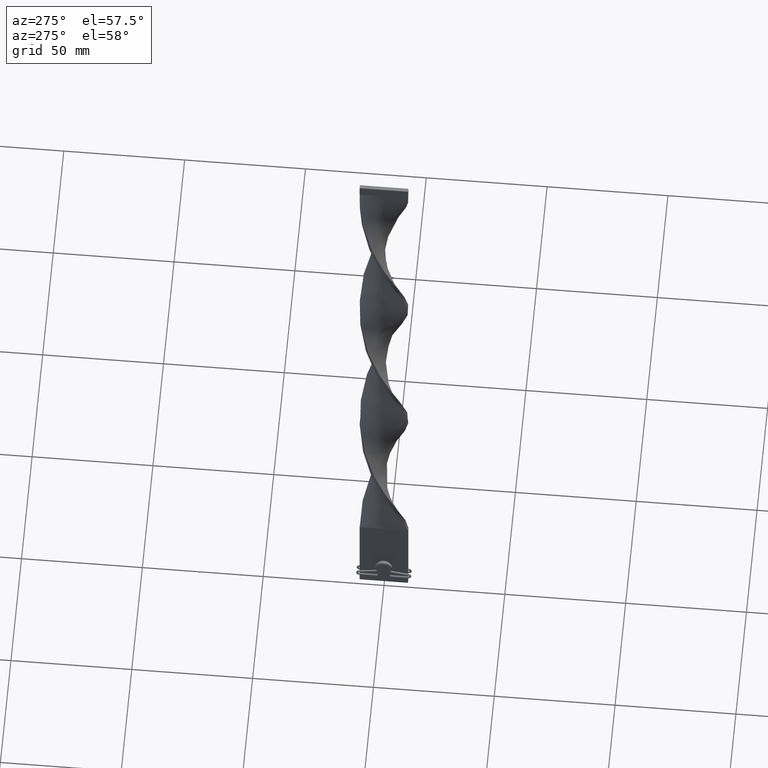
[diagram: clean part render]
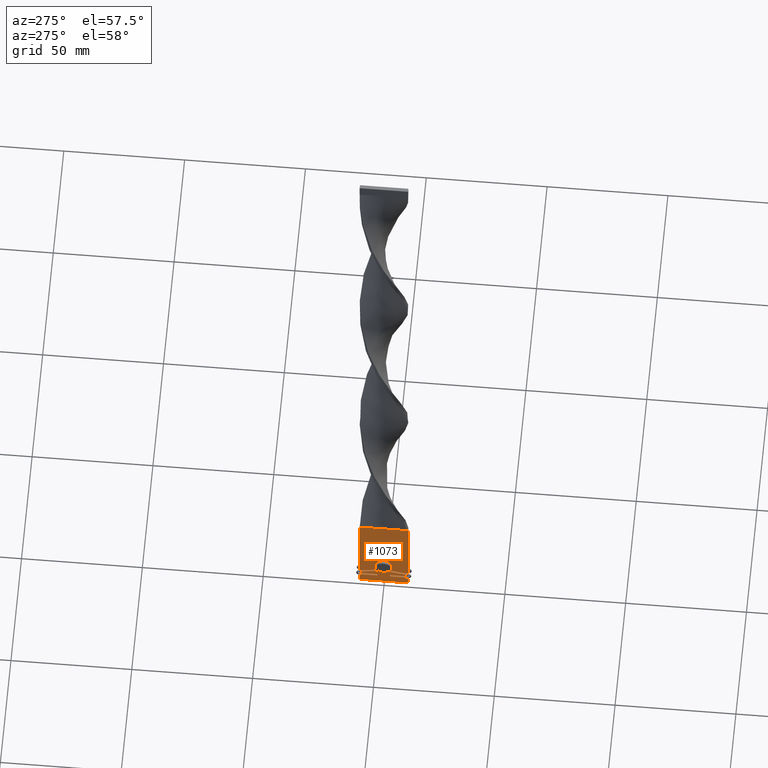
[diagram: same view with one face highlighted and labeled with its STEP entity id]
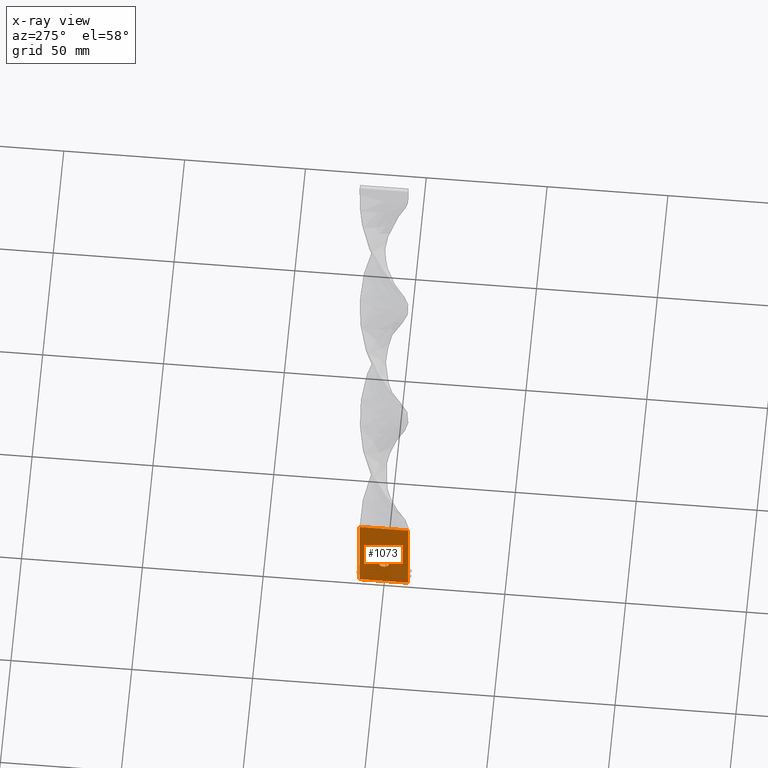
[diagram: x-ray of the same camera — body ghosted, the highlighted face saturated]
A machine part, auxiliary view. The second image highlights one B-rep face of the part: STEP entity #1073.
The next image is the same camera in x-ray: the body ghosted, the highlighted face saturated — about 0% of this face is hidden behind the body in this view.
In plain terms, the highlighted planar face has unit normal (1, 0, -0).
Its self-contained STEP definition (entity closure, byte-faithful):
#45 = AXIS2_PLACEMENT_3D ( 'NONE', #290, #3218, #660 ) ;
#145 = CARTESIAN_POINT ( 'NONE',  ( -0.7499999999999987788, -10.00000000000000000, 0.000000000000000000 ) ) ;
#290 = CARTESIAN_POINT ( 'NONE',  ( -0.7500000000000000000, 8.944667923005414046E-17, 13.00000000000000000 ) ) ;
#300 = ORIENTED_EDGE ( 'NONE', *, *, #2741, .F. ) ;
#309 = DIRECTION ( 'NONE',  ( -0.000000000000000000, -0.000000000000000000, -1.000000000000000000 ) ) ;
#323 = VERTEX_POINT ( 'NONE', #3195 ) ;
#331 = EDGE_CURVE ( 'NONE', #2056, #4666, #1693, .T. ) ;
#511 = AXIS2_PLACEMENT_3D ( 'NONE', #546, #2007, #3484 ) ;
#546 = CARTESIAN_POINT ( 'NONE',  ( -0.7500000000000000000, 8.944667923005414046E-17, 13.00000000000000000 ) ) ;
#660 = DIRECTION ( 'NONE',  ( -1.084202172485504681E-16, 1.000000000000000000, 0.000000000000000000 ) ) ;
#788 = EDGE_LOOP ( 'NONE', ( #2396, #300 ) ) ;
#812 = CIRCLE ( 'NONE', #45, 1.999999999999999556 ) ;
#879 = VECTOR ( 'NONE', #2303, 1000.000000000000000 ) ;
#1073 = ADVANCED_FACE ( 'NONE', ( #3212, #1706 ), #3905, .F. ) ;
#1201 = CARTESIAN_POINT ( 'NONE',  ( -0.7500000000000013323, 10.00000000000000000, 0.000000000000000000 ) ) ;
#1330 = VECTOR ( 'NONE', #4630, 1000.000000000000000 ) ;
#1384 = CARTESIAN_POINT ( 'NONE',  ( -0.7500000000000013323, 10.00000000000000000, 40.00000000000000000 ) ) ;
#1422 = ORIENTED_EDGE ( 'NONE', *, *, #331, .T. ) ;
#1435 = EDGE_CURVE ( 'NONE', #2156, #323, #1596, .T. ) ;
#1499 = CARTESIAN_POINT ( 'NONE',  ( -0.7499999999999997780, -1.999999999999999556, 13.00000000000000000 ) ) ;
#1552 = CARTESIAN_POINT ( 'NONE',  ( -0.7500000000000013323, 10.00000000000000000, 40.00000000000000000 ) ) ;
#1596 = LINE ( 'NONE', #1552, #4728 ) ;
#1688 = VERTEX_POINT ( 'NONE', #3917 ) ;
#1693 = LINE ( 'NONE', #2435, #1330 ) ;
#1706 = FACE_OUTER_BOUND ( 'NONE', #1730, .T. ) ;
#1730 = EDGE_LOOP ( 'NONE', ( #1422, #4561, #1999, #3154 ) ) ;
#1799 = VECTOR ( 'NONE', #309, 1000.000000000000000 ) ;
#1999 = ORIENTED_EDGE ( 'NONE', *, *, #1435, .F. ) ;
#2007 = DIRECTION ( 'NONE',  ( -1.000000000000000000, -1.246832498358330099E-16, 0.000000000000000000 ) ) ;
#2056 = VERTEX_POINT ( 'NONE', #1201 ) ;
#2110 = EDGE_CURVE ( 'NONE', #323, #4666, #3403, .T. ) ;
#2118 = LINE ( 'NONE', #3216, #1799 ) ;
#2128 = DIRECTION ( 'NONE',  ( 1.246832498358330099E-16, -1.000000000000000000, 0.000000000000000000 ) ) ;
#2156 = VERTEX_POINT ( 'NONE', #1384 ) ;
#2303 = DIRECTION ( 'NONE',  ( -0.000000000000000000, -0.000000000000000000, -1.000000000000000000 ) ) ;
#2396 = ORIENTED_EDGE ( 'NONE', *, *, #2986, .F. ) ;
#2435 = CARTESIAN_POINT ( 'NONE',  ( -0.7500000000000013323, 10.00000000000000000, 0.000000000000000000 ) ) ;
#2577 = CIRCLE ( 'NONE', #511, 1.999999999999999556 ) ;
#2678 = CARTESIAN_POINT ( 'NONE',  ( -0.7499999999999987788, -10.00000000000000000, 40.00000000000000000 ) ) ;
#2741 = EDGE_CURVE ( 'NONE', #1688, #4414, #2577, .T. ) ;
#2795 = DIRECTION ( 'NONE',  ( -1.246832498358330099E-16, 1.000000000000000000, 0.000000000000000000 ) ) ;
#2986 = EDGE_CURVE ( 'NONE', #4414, #1688, #812, .T. ) ;
#3154 = ORIENTED_EDGE ( 'NONE', *, *, #4186, .T. ) ;
#3187 = CARTESIAN_POINT ( 'NONE',  ( -0.7500000000000013323, 10.00000000000000000, 40.00000000000000000 ) ) ;
#3195 = CARTESIAN_POINT ( 'NONE',  ( -0.7499999999999987788, -10.00000000000000000, 40.00000000000000000 ) ) ;
#3212 = FACE_BOUND ( 'NONE', #788, .T. ) ;
#3216 = CARTESIAN_POINT ( 'NONE',  ( -0.7500000000000013323, 10.00000000000000000, 40.00000000000000000 ) ) ;
#3218 = DIRECTION ( 'NONE',  ( -1.000000000000000000, -1.246832498358330099E-16, 0.000000000000000000 ) ) ;
#3403 = LINE ( 'NONE', #2678, #879 ) ;
#3424 = AXIS2_PLACEMENT_3D ( 'NONE', #3187, #4651, #2795 ) ;
#3484 = DIRECTION ( 'NONE',  ( -1.084202172485504681E-16, 1.000000000000000000, 0.000000000000000000 ) ) ;
#3905 = PLANE ( 'NONE',  #3424 ) ;
#3917 = CARTESIAN_POINT ( 'NONE',  ( -0.7500000000000002220, 1.999999999999999556, 13.00000000000000000 ) ) ;
#4186 = EDGE_CURVE ( 'NONE', #2156, #2056, #2118, .T. ) ;
#4414 = VERTEX_POINT ( 'NONE', #1499 ) ;
#4561 = ORIENTED_EDGE ( 'NONE', *, *, #2110, .F. ) ;
#4630 = DIRECTION ( 'NONE',  ( 1.246832498358330099E-16, -1.000000000000000000, 0.000000000000000000 ) ) ;
#4651 = DIRECTION ( 'NONE',  ( 1.000000000000000000, 1.246832498358330099E-16, -0.000000000000000000 ) ) ;
#4666 = VERTEX_POINT ( 'NONE', #145 ) ;
#4728 = VECTOR ( 'NONE', #2128, 1000.000000000000000 ) ;